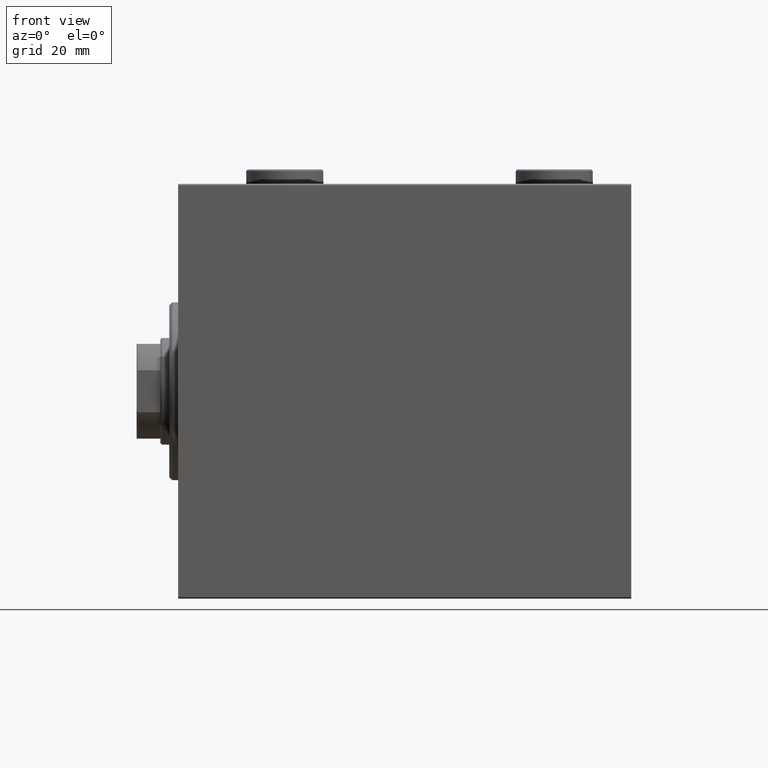
[diagram: clean part render]
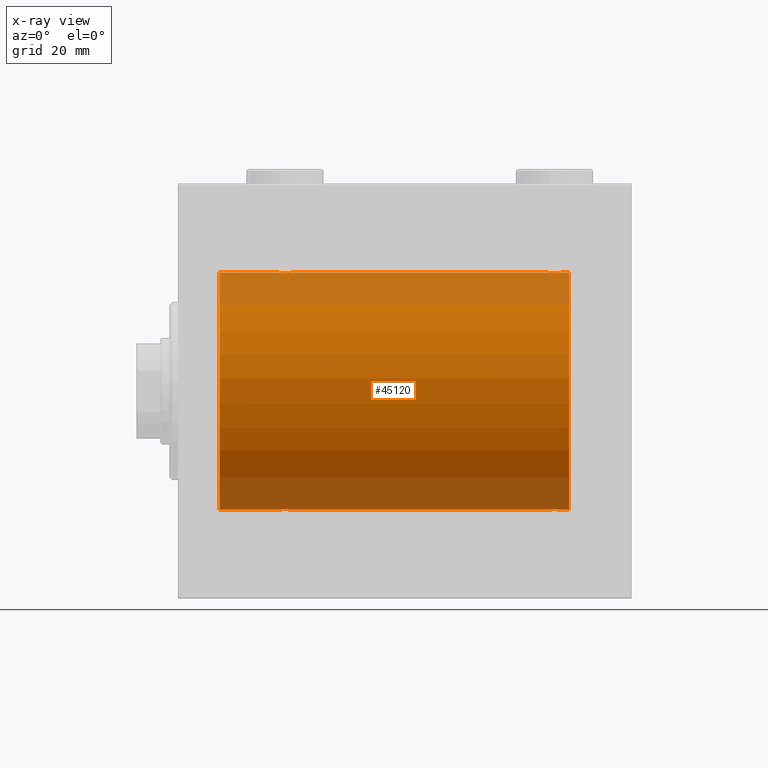
[diagram: x-ray — body ghosted, one internal face saturated and labeled with its STEP entity id]
A machine part, front view, then the same camera in x-ray: the body is ghosted and one INTERNAL B-rep face — a face not visible from any outside direction — is saturated and labeled: STEP entity #45120.
In plain terms, the highlighted cylindrical surface (partial cylindrical patch) has radius 40 mm, axis along (-1, -0, -0).
Its self-contained STEP definition (entity closure, byte-faithful):
#124 = B_SPLINE_CURVE_WITH_KNOTS ( 'NONE', 3,
 ( #43761, #1464, #12068, #29402, #26164, #18310, #39585, #22710, #11600, #14850, #32193, #39823, #28947, #43061, #8148, #42837, #11142, #21783, #11367, #43530, #25937, #25466, #40050, #8378, #36581, #7914, #15995, #2362, #9057, #41186, #30085, #37259 ),
 .UNSPECIFIED., .F., .F.,
 ( 4, 2, 2, 2, 2, 2, 2, 2, 2, 2, 2, 2, 2, 2, 2, 4 ),
 ( 0.009382660366305105304, 0.009968941372944142842, 0.01055522237958318038, 0.01114150338622221965, 0.01172778439286125719, 0.01231406539950029473, 0.01290034640613933400, 0.01348662741277837154, 0.01407290841941740908, 0.01465918942605644835, 0.01524547043269548416, 0.01583175143933452517, 0.01641803244597356271, 0.01700431345261260024, 0.01759059445925163778, 0.01876315647252971286 ),
 .UNSPECIFIED. ) ;
#326 = VERTEX_POINT ( 'NONE', #24783 ) ;
#1009 = CARTESIAN_POINT ( 'NONE',  ( 125.1695517717759998, -2.384933850258109889, 39.92898715513240404 ) ) ;
#1039 = CARTESIAN_POINT ( 'NONE',  ( 34.49911531595966352, -2.604941918888306507, -39.91523680494982784 ) ) ;
#1234 = CARTESIAN_POINT ( 'NONE',  ( 127.1956053107308975, -3.000157693440639317, 39.88732948994960736 ) ) ;
#1267 = CARTESIAN_POINT ( 'NONE',  ( 35.22544321173658943, -2.904869018727217700, -39.89440043036668726 ) ) ;
#1464 = CARTESIAN_POINT ( 'NONE',  ( 32.99999999999997158, -0.1957844162750552452, 40.00000000000000000 ) ) ;
#1593 = B_SPLINE_CURVE_WITH_KNOTS ( 'NONE', 3,
 ( #14628, #42843, #11149, #36135, #32889, #25249, #28953, #11374, #14395, #39366, #1009, #7694, #18552, #15080, #43298, #11607, #25710, #1234, #21347, #3789, #17865, #31976, #28495, #42615, #12076, #9282, #5830, #1918, #23384, #19471, #26401, #11844 ),
 .UNSPECIFIED., .F., .F.,
 ( 4, 2, 2, 2, 2, 2, 2, 2, 2, 2, 2, 2, 2, 2, 2, 4 ),
 ( 0.009382660366305098365, 0.009968941372944132434, 0.01055522237958316650, 0.01114150338622220057, 0.01172778439286123638, 0.01231406539950027218, 0.01290034640613930625, 0.01348662741277834205, 0.01407290841941737786, 0.01465918942605641193, 0.01524547043269544946, 0.01583175143933448353, 0.01641803244597351760, 0.01700431345261255514, 0.01759059445925158921, 0.01876315647252969204 ),
 .UNSPECIFIED. ) ;
#1732 = CARTESIAN_POINT ( 'NONE',  ( 38.98101877110926239, -0.3904143323715931757, -39.99856256910221219 ) ) ;
#1918 = CARTESIAN_POINT ( 'NONE',  ( 129.6018872812850020, -1.506322235190788117, 39.97196309111976831 ) ) ;
#1979 = CARTESIAN_POINT ( 'NONE',  ( 124.6174831908853804, -1.833695109615725238, -39.95828327492363741 ) ) ;
#2124 = LINE ( 'NONE', #30522, #10926 ) ;
#2362 = CARTESIAN_POINT ( 'NONE',  ( 38.60188728128492386, -1.506322235190783232, 39.97196309111974699 ) ) ;
#2452 = EDGE_CURVE ( 'NONE', #33634, #18162, #2124, .T. ) ;
#3201 = FACE_OUTER_BOUND ( 'NONE', #25117, .T. ) ;
#3385 = CARTESIAN_POINT ( 'NONE',  ( 127.9693834189446733, -2.845855236045358172, -39.89870693240651178 ) ) ;
#3789 = CARTESIAN_POINT ( 'NONE',  ( 127.7745567882634106, -2.904869018727219476, 39.89440043036668726 ) ) ;
#4263 = CARTESIAN_POINT ( 'NONE',  ( 36.39522483453576029, -2.980272303779541332, -39.88883864243169342 ) ) ;
#4293 = CARTESIAN_POINT ( 'NONE',  ( 129.6972134058088670, -1.327859336864152917, -39.97836169682017271 ) ) ;
#4578 = VERTEX_POINT ( 'NONE', #42043 ) ;
#4722 = CARTESIAN_POINT ( 'NONE',  ( 33.30462992291564461, -1.331594428131640528, -39.97823692017208685 ) ) ;
#4784 = VECTOR ( 'NONE', #35648, 1000.000000000000000 ) ;
#4903 = EDGE_CURVE ( 'NONE', #20496, #326, #27645, .T. ) ;
#5303 = DIRECTION ( 'NONE',  ( -1.000000000000000000, -0.000000000000000000, -0.000000000000000000 ) ) ;
#5439 = CARTESIAN_POINT ( 'NONE',  ( 13.99999999999999822, 0.000000000000000000, 40.00000000000000000 ) ) ;
#5440 = CARTESIAN_POINT ( 'NONE',  ( 124.3046299229156375, -1.331594428131649632, -39.97823692017209396 ) ) ;
#5728 = CARTESIAN_POINT ( 'NONE',  ( 39.00000000000000000, 1.037715139942869821E-15, 40.00000000000000000 ) ) ;
#5830 = CARTESIAN_POINT ( 'NONE',  ( 129.3825168091146338, -1.833695109615721686, 39.95828327492363030 ) ) ;
#5844 = EDGE_CURVE ( 'NONE', #19112, #33634, #19377, .T. ) ;
#6626 = ORIENTED_EDGE ( 'NONE', *, *, #12927, .T. ) ;
#6668 = DIRECTION ( 'NONE',  ( -1.000000000000000000, -0.000000000000000000, -0.000000000000000000 ) ) ;
#7694 = CARTESIAN_POINT ( 'NONE',  ( 125.4955691708653802, -2.602909538701756897, 39.91537030566259148 ) ) ;
#7725 = CARTESIAN_POINT ( 'NONE',  ( 37.33224268865864559, -2.695129988695729839, -39.90917164320280364 ) ) ;
#7751 = CARTESIAN_POINT ( 'NONE',  ( 130.0000000000000000, 4.898587181754971267E-15, -40.00000000000000000 ) ) ;
#7834 = B_SPLINE_CURVE_WITH_KNOTS ( 'NONE', 3,
 ( #21821, #19281, #1732, #36392, #14890, #39397, #8650, #32468, #25506, #8415, #29900, #44020, #7725, #35938, #36165, #4263, #28984, #39626, #7950, #1267, #32695, #43331, #1039, #15112, #29208, #15348, #11639, #25743, #4722, #39860, #8187, #22508 ),
 .UNSPECIFIED., .F., .F.,
 ( 4, 2, 2, 2, 2, 2, 2, 2, 2, 2, 2, 2, 2, 2, 2, 4 ),
 ( 0.009382660366305110508, 0.009968941372944146312, 0.01055522237958318212, 0.01114150338622221792, 0.01172778439286125372, 0.01231406539950028953, 0.01290034640613932533, 0.01348662741277836113, 0.01407290841941739694, 0.01465918942605643274, 0.01524547043269546855, 0.01583175143933450435, 0.01641803244597354189, 0.01700431345261257596, 0.01759059445925161003, 0.01876315647252968163 ),
 .UNSPECIFIED. ) ;
#7914 = CARTESIAN_POINT ( 'NONE',  ( 38.25829670320502629, -1.984537326394305801, 39.95097977400578060 ) ) ;
#7950 = CARTESIAN_POINT ( 'NONE',  ( 35.60890307490667794, -2.980812880639892359, -39.88879797994688658 ) ) ;
#7980 = CARTESIAN_POINT ( 'NONE',  ( 128.8304482282240429, -2.384933850258120547, -39.92898715513240404 ) ) ;
#8148 = CARTESIAN_POINT ( 'NONE',  ( 35.22130476584258219, -2.903766417398241373, 39.89448096967571189 ) ) ;
#8187 = CARTESIAN_POINT ( 'NONE',  ( 32.99999999999998579, -0.3964922677423637909, -39.99999999999998579 ) ) ;
#8378 = CARTESIAN_POINT ( 'NONE',  ( 37.82690184632411246, -2.387636253591820079, 39.92882473497731866 ) ) ;
#8415 = CARTESIAN_POINT ( 'NONE',  ( 37.98461447812278635, -2.258217541132897743, -39.93644519243654400 ) ) ;
#8632 = DIRECTION ( 'NONE',  ( -1.000000000000000000, 0.000000000000000000, 0.000000000000000000 ) ) ;
#8650 = CARTESIAN_POINT ( 'NONE',  ( 38.60433599912083480, -1.502129635934000396, -39.97212271185185273 ) ) ;
#8677 = CARTESIAN_POINT ( 'NONE',  ( 124.7417032967949950, -1.984537326394313350, -39.95097977400577349 ) ) ;
#8789 = EDGE_CURVE ( 'NONE', #40660, #4578, #1593, .T. ) ;
#8904 = CARTESIAN_POINT ( 'NONE',  ( 124.0797382500835226, -0.7903958539027424735, -39.99381900068937057 ) ) ;
#9057 = CARTESIAN_POINT ( 'NONE',  ( 38.69537007708435539, -1.331594428131644747, 39.97823692017209396 ) ) ;
#9282 = CARTESIAN_POINT ( 'NONE',  ( 129.2582967032050192, -1.984537326394309353, 39.95097977400578770 ) ) ;
#9460 = ORIENTED_EDGE ( 'NONE', *, *, #26021, .F. ) ;
#9796 = CARTESIAN_POINT ( 'NONE',  ( 132.0000000000000000, 4.898587196589413026E-15, -40.00000000000000000 ) ) ;
#10070 = CARTESIAN_POINT ( 'NONE',  ( 132.0000000000000000, 4.898587196589413026E-15, -40.00000000000000000 ) ) ;
#10191 = EDGE_CURVE ( 'NONE', #14438, #39702, #30351, .T. ) ;
#10243 = ORIENTED_EDGE ( 'NONE', *, *, #5844, .T. ) ;
#10528 = CARTESIAN_POINT ( 'NONE',  ( 129.9042517365134870, -0.7773146824711014702, -39.99291453282344122 ) ) ;
#10620 = EDGE_CURVE ( 'NONE', #16517, #19112, #22626, .T. ) ;
#10926 = VECTOR ( 'NONE', #40940, 1000.000000000000000 ) ;
#11116 = CIRCLE ( 'NONE', #28812, 40.00000000000000000 ) ;
#11142 = CARTESIAN_POINT ( 'NONE',  ( 35.79958713980802543, -2.999840380514749327, 39.88735335562824247 ) ) ;
#11149 = CARTESIAN_POINT ( 'NONE',  ( 124.0189812288907376, -0.3904143323715993374, 39.99856256910221219 ) ) ;
#11367 = CARTESIAN_POINT ( 'NONE',  ( 36.39109692509333627, -2.980812880639903906, 39.88879797994688658 ) ) ;
#11374 = CARTESIAN_POINT ( 'NONE',  ( 124.6149239908464352, -1.830402106103512061, 39.95843610133492518 ) ) ;
#11434 = CARTESIAN_POINT ( 'NONE',  ( 129.3850760091535506, -1.830402106103511617, -39.95843610133493229 ) ) ;
#11600 = CARTESIAN_POINT ( 'NONE',  ( 33.73902383005257377, -1.981471132463168416, 39.95113231465138881 ) ) ;
#11607 = CARTESIAN_POINT ( 'NONE',  ( 126.6047751654642610, -2.980272303779546661, 39.88883864243169342 ) ) ;
#11639 = CARTESIAN_POINT ( 'NONE',  ( 33.61748319088535908, -1.833695109615714802, -39.95828327492363741 ) ) ;
#11649 = VECTOR ( 'NONE', #39918, 1000.000000000000000 ) ;
#11701 = LINE ( 'NONE', #25801, #11649 ) ;
#11844 = CARTESIAN_POINT ( 'NONE',  ( 130.0000000000000000, 1.438244736840143699E-15, 40.00000000000000000 ) ) ;
#12068 = CARTESIAN_POINT ( 'NONE',  ( 33.01898122889073051, -0.3904143323715976166, 39.99856256910221219 ) ) ;
#12076 = CARTESIAN_POINT ( 'NONE',  ( 128.9813627951423030, -2.261082456166709775, 39.93628274425759628 ) ) ;
#12142 = ORIENTED_EDGE ( 'NONE', *, *, #39861, .T. ) ;
#12780 = CARTESIAN_POINT ( 'NONE',  ( 132.0000000000000000, 0.000000000000000000, 40.00000000000000000 ) ) ;
#12927 = EDGE_CURVE ( 'NONE', #18162, #20496, #7834, .T. ) ;
#14395 = CARTESIAN_POINT ( 'NONE',  ( 124.7390238300526022, -1.981471132463164864, 39.95113231465138171 ) ) ;
#14438 = VERTEX_POINT ( 'NONE', #41288 ) ;
#14628 = CARTESIAN_POINT ( 'NONE',  ( 124.0000000000000142, -1.483413489222851649E-23, 40.00000000000000000 ) ) ;
#14850 = CARTESIAN_POINT ( 'NONE',  ( 34.01538552187719233, -2.258217541132905293, 39.93644519243653690 ) ) ;
#14890 = CARTESIAN_POINT ( 'NONE',  ( 38.84665273013138176, -0.9668189122103333366, -39.98872185468385254 ) ) ;
#15080 = CARTESIAN_POINT ( 'NONE',  ( 126.0306165810553836, -2.845855236045348846, 39.89870693240651178 ) ) ;
#15112 = CARTESIAN_POINT ( 'NONE',  ( 34.17309815367588754, -2.387636253591812974, -39.92882473497732576 ) ) ;
#15141 = CARTESIAN_POINT ( 'NONE',  ( 124.0000000000000000, -4.348227045662351080E-15, -40.00000000000000000 ) ) ;
#15348 = CARTESIAN_POINT ( 'NONE',  ( 33.74170329679496660, -1.984537326394300250, -39.95097977400577349 ) ) ;
#15995 = CARTESIAN_POINT ( 'NONE',  ( 38.38251680911464803, -1.833695109615718355, 39.95828327492363741 ) ) ;
#16225 = CARTESIAN_POINT ( 'NONE',  ( 32.99999999999999289, 4.605585004310627937E-15, -40.00000000000000000 ) ) ;
#16517 = VERTEX_POINT ( 'NONE', #9796 ) ;
#17469 = CARTESIAN_POINT ( 'NONE',  ( 127.7786952341574960, -2.903766417398240041, -39.89448096967572610 ) ) ;
#17865 = CARTESIAN_POINT ( 'NONE',  ( 127.9648932585351275, -2.847401743820454190, 39.89859630624607689 ) ) ;
#18162 = VERTEX_POINT ( 'NONE', #36157 ) ;
#18176 = ORIENTED_EDGE ( 'NONE', *, *, #10620, .T. ) ;
#18310 = CARTESIAN_POINT ( 'NONE',  ( 33.30278659419118270, -1.327859336864150253, 39.97836169682017982 ) ) ;
#18378 = CARTESIAN_POINT ( 'NONE',  ( 129.6043359991208490, -1.502129635933995955, -39.97212271185185983 ) ) ;
#18552 = CARTESIAN_POINT ( 'NONE',  ( 125.6677573113414184, -2.695129988695746714, 39.90917164320283206 ) ) ;
#19112 = VERTEX_POINT ( 'NONE', #43152 ) ;
#19144 = EDGE_CURVE ( 'NONE', #40660, #41189, #11701, .T. ) ;
#19281 = CARTESIAN_POINT ( 'NONE',  ( 38.99999999999999289, -0.1957844162750510819, -40.00000000000000711 ) ) ;
#19377 = B_SPLINE_CURVE_WITH_KNOTS ( 'NONE', 3,
 ( #7751, #39424, #29012, #10528, #21848, #4293, #18378, #11434, #25535, #39655, #7980, #24628, #38744, #3385, #17469, #31582, #45690, #21175, #33644, #19526, #40116, #29706, #29472, #29928, #44280, #8677, #1979, #33423, #5440, #8904, #32724, #15141 ),
 .UNSPECIFIED., .F., .F.,
 ( 4, 2, 2, 2, 2, 2, 2, 2, 2, 2, 2, 2, 2, 2, 2, 4 ),
 ( 0.009382660366305120916, 0.009968941372944167129, 0.01055522237958321334, 0.01114150338622225955, 0.01172778439286130403, 0.01231406539950035024, 0.01290034640613939472, 0.01348662741277844093, 0.01407290841941748541, 0.01465918942605653162, 0.01524547043269557783, 0.01583175143933462231, 0.01641803244597366679, 0.01700431345261268351, 0.01759059445925170023, 0.01876315647252973021 ),
 .UNSPECIFIED. ) ;
#19471 = CARTESIAN_POINT ( 'NONE',  ( 129.9202617499164774, -0.7903958539027365893, 39.99381900068937767 ) ) ;
#19526 = CARTESIAN_POINT ( 'NONE',  ( 126.2254432117366463, -2.904869018727229246, -39.89440043036668726 ) ) ;
#20496 = VERTEX_POINT ( 'NONE', #16225 ) ;
#21175 = CARTESIAN_POINT ( 'NONE',  ( 126.8043946892691594, -3.000157693440647311, -39.88732948994960736 ) ) ;
#21347 = CARTESIAN_POINT ( 'NONE',  ( 127.3910969250933789, -2.980812880639897688, 39.88879797994690080 ) ) ;
#21783 = CARTESIAN_POINT ( 'NONE',  ( 36.19560531073086906, -3.000157693440643758, 39.88732948994960026 ) ) ;
#21821 = CARTESIAN_POINT ( 'NONE',  ( 39.00000000000000000, 4.898587181754971267E-15, -40.00000000000000000 ) ) ;
#21848 = CARTESIAN_POINT ( 'NONE',  ( 129.8466527301314102, -0.9668189122103406641, -39.98872185468384544 ) ) ;
#22508 = CARTESIAN_POINT ( 'NONE',  ( 32.99999999999999289, 4.605585004310627937E-15, -40.00000000000000000 ) ) ;
#22626 = LINE ( 'NONE', #33279, #23343 ) ;
#22710 = CARTESIAN_POINT ( 'NONE',  ( 33.61492399084646365, -1.830402106103518722, 39.95843610133494650 ) ) ;
#22962 = DIRECTION ( 'NONE',  ( 0.000000000000000000, 0.000000000000000000, 1.000000000000000000 ) ) ;
#23343 = VECTOR ( 'NONE', #5303, 1000.000000000000000 ) ;
#23384 = CARTESIAN_POINT ( 'NONE',  ( 129.6953700770843341, -1.331594428131642083, 39.97823692017209396 ) ) ;
#24628 = CARTESIAN_POINT ( 'NONE',  ( 128.5044308291346908, -2.602909538701766667, -39.91537030566258437 ) ) ;
#24634 = CARTESIAN_POINT ( 'NONE',  ( 124.0000000000000142, -1.483413489222851649E-23, 40.00000000000000000 ) ) ;
#24783 = CARTESIAN_POINT ( 'NONE',  ( 13.99999999999999822, 4.898587196589413026E-15, -40.00000000000000000 ) ) ;
#25029 = DIRECTION ( 'NONE',  ( 0.000000000000000000, 0.000000000000000000, 1.000000000000000000 ) ) ;
#25096 = ORIENTED_EDGE ( 'NONE', *, *, #8789, .T. ) ;
#25117 = EDGE_LOOP ( 'NONE', ( #9460, #18176, #10243, #35731, #6626, #40441, #12142, #27220, #38086, #33761, #25096, #27917 ) ) ;
#25249 = CARTESIAN_POINT ( 'NONE',  ( 124.3027865941911898, -1.327859336864153805, 39.97836169682017982 ) ) ;
#25466 = CARTESIAN_POINT ( 'NONE',  ( 37.32853644746295885, -2.696981015661930936, 39.90904630908465833 ) ) ;
#25506 = CARTESIAN_POINT ( 'NONE',  ( 38.26097616994740491, -1.981471132463162643, -39.95113231465139592 ) ) ;
#25535 = CARTESIAN_POINT ( 'NONE',  ( 129.2609761699474120, -1.981471132463174856, -39.95113231465138881 ) ) ;
#25710 = CARTESIAN_POINT ( 'NONE',  ( 126.7995871398080396, -2.999840380514741778, 39.88735335562826378 ) ) ;
#25743 = CARTESIAN_POINT ( 'NONE',  ( 33.39811271871507614, -1.506322235190781456, -39.97196309111974699 ) ) ;
#25801 = CARTESIAN_POINT ( 'NONE',  ( 132.0000000000000000, 0.000000000000000000, 40.00000000000000000 ) ) ;
#25937 = CARTESIAN_POINT ( 'NONE',  ( 36.96489325853514174, -2.847401743820462183, 39.89859630624607689 ) ) ;
#26021 = EDGE_CURVE ( 'NONE', #16517, #39977, #11116, .T. ) ;
#26164 = CARTESIAN_POINT ( 'NONE',  ( 33.15334726986859692, -0.9668189122103387767, 39.98872185468385254 ) ) ;
#26401 = CARTESIAN_POINT ( 'NONE',  ( 130.0000000000000284, -0.3964922677423681208, 40.00000000000000000 ) ) ;
#26649 = CARTESIAN_POINT ( 'NONE',  ( 132.0000000000000000, 0.000000000000000000, 0.000000000000000000 ) ) ;
#26879 = DIRECTION ( 'NONE',  ( -1.000000000000000000, -0.000000000000000000, -0.000000000000000000 ) ) ;
#27220 = ORIENTED_EDGE ( 'NONE', *, *, #10191, .F. ) ;
#27645 = LINE ( 'NONE', #10070, #33536 ) ;
#27689 = CARTESIAN_POINT ( 'NONE',  ( 132.0000000000000000, 0.000000000000000000, 0.000000000000000000 ) ) ;
#27917 = ORIENTED_EDGE ( 'NONE', *, *, #33289, .F. ) ;
#28056 = CARTESIAN_POINT ( 'NONE',  ( 13.99999999999999822, 0.000000000000000000, 0.000000000000000000 ) ) ;
#28495 = CARTESIAN_POINT ( 'NONE',  ( 128.5008846840403862, -2.604941918888314056, 39.91523680494984205 ) ) ;
#28723 = AXIS2_PLACEMENT_3D ( 'NONE', #27689, #6668, #37877 ) ;
#28812 = AXIS2_PLACEMENT_3D ( 'NONE', #26649, #8632, #22962 ) ;
#28947 = CARTESIAN_POINT ( 'NONE',  ( 34.66775731134134730, -2.695129988695744494, 39.90917164320281074 ) ) ;
#28953 = CARTESIAN_POINT ( 'NONE',  ( 124.3956640008791794, -1.502129635933999730, 39.97212271185186694 ) ) ;
#28984 = CARTESIAN_POINT ( 'NONE',  ( 36.20041286019198168, -2.999840380514735116, -39.88735335562824957 ) ) ;
#29012 = CARTESIAN_POINT ( 'NONE',  ( 129.9810187711092624, -0.3904143323715938974, -39.99856256910221219 ) ) ;
#29208 = CARTESIAN_POINT ( 'NONE',  ( 34.01863720485770415, -2.261082456166700005, -39.93628274425758917 ) ) ;
#29402 = CARTESIAN_POINT ( 'NONE',  ( 33.09574826348647036, -0.7773146824711036906, 39.99291453282343412 ) ) ;
#29472 = CARTESIAN_POINT ( 'NONE',  ( 125.4991153159596706, -2.604941918888307839, -39.91523680494984205 ) ) ;
#29706 = CARTESIAN_POINT ( 'NONE',  ( 125.6714635525370767, -2.696981015661930492, -39.90904630908469386 ) ) ;
#29900 = CARTESIAN_POINT ( 'NONE',  ( 37.83044822822401443, -2.384933850258100119, -39.92898715513241115 ) ) ;
#29928 = CARTESIAN_POINT ( 'NONE',  ( 125.1730981536758662, -2.387636253591809865, -39.92882473497731155 ) ) ;
#30085 = CARTESIAN_POINT ( 'NONE',  ( 39.00000000000000711, -0.3964922677423692865, 40.00000000000000711 ) ) ;
#30351 = LINE ( 'NONE', #12780, #43992 ) ;
#30522 = CARTESIAN_POINT ( 'NONE',  ( 132.0000000000000000, 4.898587196589413026E-15, -40.00000000000000000 ) ) ;
#30627 = CARTESIAN_POINT ( 'NONE',  ( 124.0000000000000000, -4.348227045662351080E-15, -40.00000000000000000 ) ) ;
#31582 = CARTESIAN_POINT ( 'NONE',  ( 127.3952248345358100, -2.980272303779554655, -39.88883864243169342 ) ) ;
#31976 = CARTESIAN_POINT ( 'NONE',  ( 128.3285364474629660, -2.696981015661922054, 39.90904630908467965 ) ) ;
#32193 = CARTESIAN_POINT ( 'NONE',  ( 34.16955177177597847, -2.384933850258112553, 39.92898715513240404 ) ) ;
#32468 = CARTESIAN_POINT ( 'NONE',  ( 38.38507600915353635, -1.830402106103512505, -39.95843610133493229 ) ) ;
#32695 = CARTESIAN_POINT ( 'NONE',  ( 35.03510674146484405, -2.847401743820449305, -39.89859630624607689 ) ) ;
#32724 = CARTESIAN_POINT ( 'NONE',  ( 124.0000000000000426, -0.3964922677423736164, -40.00000000000001421 ) ) ;
#32889 = CARTESIAN_POINT ( 'NONE',  ( 124.1533472698686182, -0.9668189122103438837, 39.98872185468384544 ) ) ;
#33279 = CARTESIAN_POINT ( 'NONE',  ( 132.0000000000000000, 4.898587196589413026E-15, -40.00000000000000000 ) ) ;
#33289 = EDGE_CURVE ( 'NONE', #39977, #4578, #40027, .T. ) ;
#33423 = CARTESIAN_POINT ( 'NONE',  ( 124.3981127187150832, -1.506322235190790337, -39.97196309111976120 ) ) ;
#33536 = VECTOR ( 'NONE', #45453, 1000.000000000000000 ) ;
#33634 = VERTEX_POINT ( 'NONE', #30627 ) ;
#33644 = CARTESIAN_POINT ( 'NONE',  ( 126.6089030749067206, -2.980812880639905682, -39.88879797994690080 ) ) ;
#33761 = ORIENTED_EDGE ( 'NONE', *, *, #19144, .F. ) ;
#34725 = CARTESIAN_POINT ( 'NONE',  ( 132.0000000000000000, 0.000000000000000000, 40.00000000000000000 ) ) ;
#35278 = CIRCLE ( 'NONE', #43396, 40.00000000000000000 ) ;
#35648 = DIRECTION ( 'NONE',  ( -1.000000000000000000, -0.000000000000000000, -0.000000000000000000 ) ) ;
#35731 = ORIENTED_EDGE ( 'NONE', *, *, #2452, .T. ) ;
#35938 = CARTESIAN_POINT ( 'NONE',  ( 36.96938341894465907, -2.845855236045336856, -39.89870693240651178 ) ) ;
#36135 = CARTESIAN_POINT ( 'NONE',  ( 124.0957482634864988, -0.7773146824711042457, 39.99291453282345543 ) ) ;
#36157 = CARTESIAN_POINT ( 'NONE',  ( 39.00000000000000000, 4.898587181754971267E-15, -40.00000000000000000 ) ) ;
#36165 = CARTESIAN_POINT ( 'NONE',  ( 36.77869523415743913, -2.903766417398228938, -39.89448096967571900 ) ) ;
#36392 = CARTESIAN_POINT ( 'NONE',  ( 38.90425173651351543, -0.7773146824710984726, -39.99291453282344122 ) ) ;
#36581 = CARTESIAN_POINT ( 'NONE',  ( 37.98136279514229585, -2.261082456166707111, 39.93628274425758207 ) ) ;
#37259 = CARTESIAN_POINT ( 'NONE',  ( 39.00000000000000000, 1.037715139942869821E-15, 40.00000000000000000 ) ) ;
#37877 = DIRECTION ( 'NONE',  ( 0.000000000000000000, 0.000000000000000000, 1.000000000000000000 ) ) ;
#38086 = ORIENTED_EDGE ( 'NONE', *, *, #38894, .T. ) ;
#38336 = CYLINDRICAL_SURFACE ( 'NONE', #28723, 40.00000000000000000 ) ;
#38744 = CARTESIAN_POINT ( 'NONE',  ( 128.3322426886586243, -2.695129988695754264, -39.90917164320280364 ) ) ;
#38894 = EDGE_CURVE ( 'NONE', #14438, #41189, #124, .T. ) ;
#39144 = DIRECTION ( 'NONE',  ( -1.000000000000000000, 0.000000000000000000, 0.000000000000000000 ) ) ;
#39366 = CARTESIAN_POINT ( 'NONE',  ( 125.0153855218772492, -2.258217541132901296, 39.93644519243655111 ) ) ;
#39397 = CARTESIAN_POINT ( 'NONE',  ( 38.69721340580881730, -1.327859336864144035, -39.97836169682019403 ) ) ;
#39424 = CARTESIAN_POINT ( 'NONE',  ( 130.0000000000000000, -0.1957844162750506378, -39.99999999999999289 ) ) ;
#39585 = CARTESIAN_POINT ( 'NONE',  ( 33.39566400087915810, -1.502129635934004614, 39.97212271185186694 ) ) ;
#39626 = CARTESIAN_POINT ( 'NONE',  ( 35.80439468926913804, -3.000157693440631324, -39.88732948994960026 ) ) ;
#39655 = CARTESIAN_POINT ( 'NONE',  ( 128.9846144781228077, -2.258217541132911066, -39.93644519243653690 ) ) ;
#39702 = VERTEX_POINT ( 'NONE', #5439 ) ;
#39823 = CARTESIAN_POINT ( 'NONE',  ( 34.49556917086533758, -2.602909538701760006, 39.91537030566259148 ) ) ;
#39860 = CARTESIAN_POINT ( 'NONE',  ( 33.07973825008353685, -0.7903958539027382546, -39.99381900068937767 ) ) ;
#39861 = EDGE_CURVE ( 'NONE', #326, #39702, #35278, .T. ) ;
#39918 = DIRECTION ( 'NONE',  ( -1.000000000000000000, -0.000000000000000000, -0.000000000000000000 ) ) ;
#39977 = VERTEX_POINT ( 'NONE', #34725 ) ;
#40027 = LINE ( 'NONE', #40260, #4784 ) ;
#40050 = CARTESIAN_POINT ( 'NONE',  ( 37.50088468404035069, -2.604941918888315833, 39.91523680494983495 ) ) ;
#40116 = CARTESIAN_POINT ( 'NONE',  ( 126.0351067414649009, -2.847401743820463516, -39.89859630624609821 ) ) ;
#40260 = CARTESIAN_POINT ( 'NONE',  ( 132.0000000000000000, 0.000000000000000000, 40.00000000000000000 ) ) ;
#40441 = ORIENTED_EDGE ( 'NONE', *, *, #4903, .T. ) ;
#40660 = VERTEX_POINT ( 'NONE', #24634 ) ;
#40940 = DIRECTION ( 'NONE',  ( -1.000000000000000000, -0.000000000000000000, -0.000000000000000000 ) ) ;
#41186 = CARTESIAN_POINT ( 'NONE',  ( 38.92026174991647025, -0.7903958539027386987, 39.99381900068935636 ) ) ;
#41189 = VERTEX_POINT ( 'NONE', #5728 ) ;
#41288 = CARTESIAN_POINT ( 'NONE',  ( 32.99999999999999289, -1.483452932268112700E-23, 40.00000000000000000 ) ) ;
#42043 = CARTESIAN_POINT ( 'NONE',  ( 130.0000000000000000, 1.438244736840143699E-15, 40.00000000000000000 ) ) ;
#42615 = CARTESIAN_POINT ( 'NONE',  ( 128.8269018463241480, -2.387636253591819191, 39.92882473497733997 ) ) ;
#42837 = CARTESIAN_POINT ( 'NONE',  ( 35.60477516546423260, -2.980272303779553766, 39.88883864243167920 ) ) ;
#42843 = CARTESIAN_POINT ( 'NONE',  ( 124.0000000000000142, -0.1957844162750570216, 39.99999999999999289 ) ) ;
#43061 = CARTESIAN_POINT ( 'NONE',  ( 35.03061658105534804, -2.845855236045349734, 39.89870693240651889 ) ) ;
#43152 = CARTESIAN_POINT ( 'NONE',  ( 130.0000000000000000, 4.898587181754971267E-15, -40.00000000000000000 ) ) ;
#43298 = CARTESIAN_POINT ( 'NONE',  ( 126.2213047658425324, -2.903766417398231159, 39.89448096967571189 ) ) ;
#43331 = CARTESIAN_POINT ( 'NONE',  ( 34.67146355253704826, -2.696981015661917613, -39.90904630908468675 ) ) ;
#43396 = AXIS2_PLACEMENT_3D ( 'NONE', #28056, #39144, #25029 ) ;
#43530 = CARTESIAN_POINT ( 'NONE',  ( 36.77455678826341057, -2.904869018727228358, 39.89440043036668015 ) ) ;
#43761 = CARTESIAN_POINT ( 'NONE',  ( 32.99999999999999289, -1.483452932268112700E-23, 40.00000000000000000 ) ) ;
#43992 = VECTOR ( 'NONE', #26879, 1000.000000000000000 ) ;
#44020 = CARTESIAN_POINT ( 'NONE',  ( 37.50443082913466242, -2.602909538701748016, -39.91537030566259148 ) ) ;
#44280 = CARTESIAN_POINT ( 'NONE',  ( 125.0186372048577255, -2.261082456166713772, -39.93628274425758207 ) ) ;
#45120 = ADVANCED_FACE ( 'NONE', ( #3201 ), #38336, .F. ) ;
#45453 = DIRECTION ( 'NONE',  ( -1.000000000000000000, -0.000000000000000000, -0.000000000000000000 ) ) ;
#45690 = CARTESIAN_POINT ( 'NONE',  ( 127.2004128601920456, -2.999840380514751104, -39.88735335562825668 ) ) ;